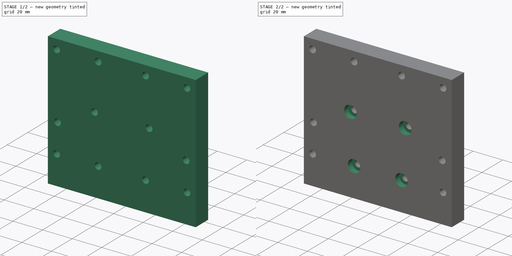
[diagram: build sequence overview — one tinted view per stage of 2, left to right]
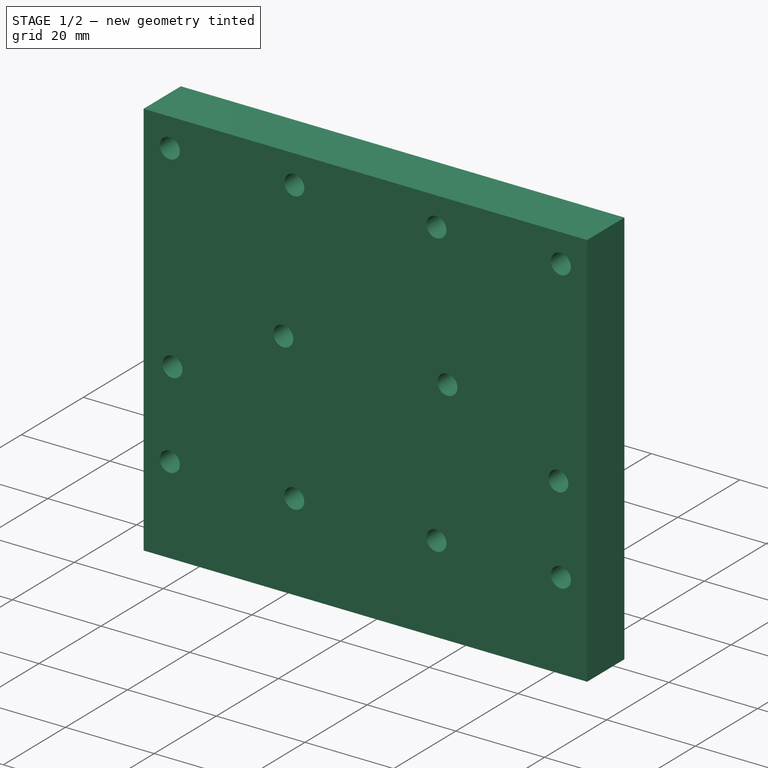
[diagram: stage 1 of 2 — iso view after this stage's code; geometry added in this stage tinted green]
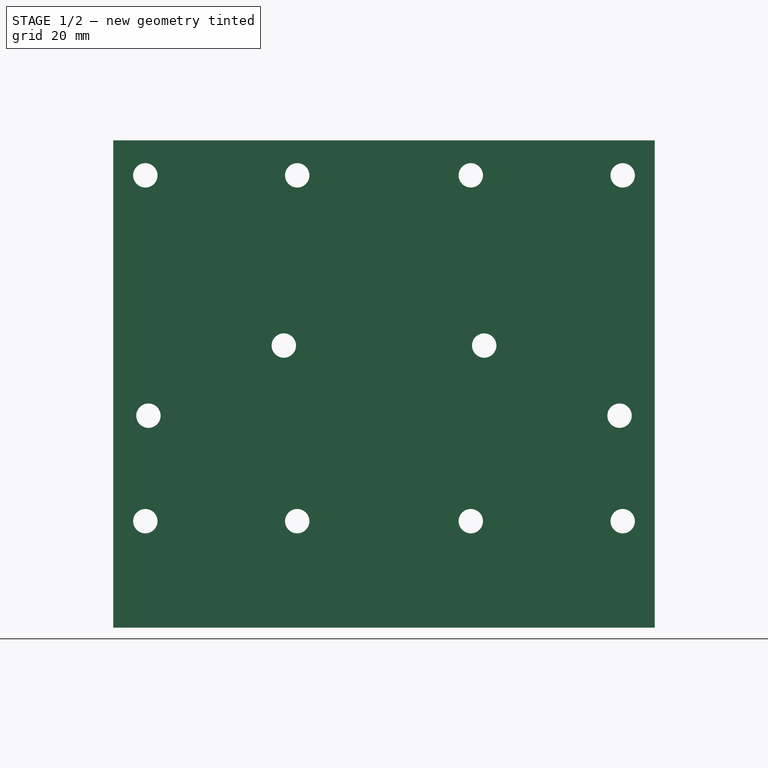
[diagram: stage 1 of 2 — front view after this stage's code; geometry added in this stage tinted green]
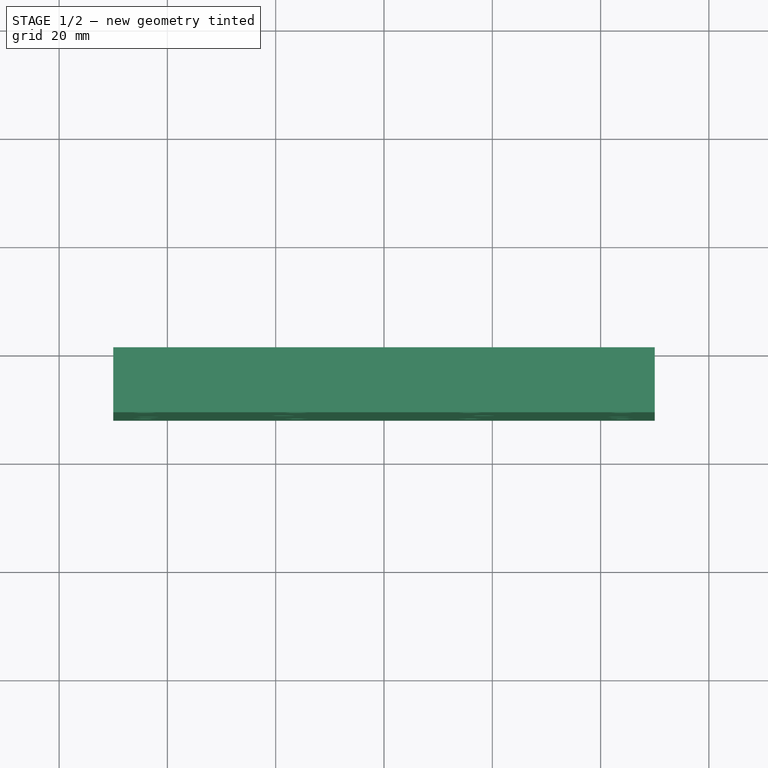
[diagram: stage 1 of 2 — top view after this stage's code; geometry added in this stage tinted green]
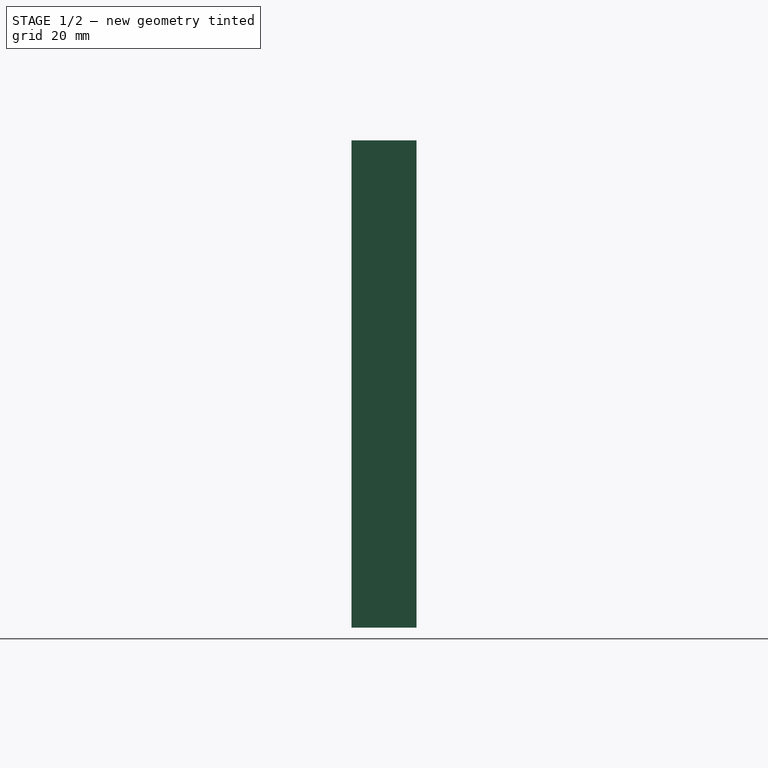
[diagram: stage 1 of 2 — right view after this stage's code; geometry added in this stage tinted green]
FCSTD DOCUMENT  (FreeCAD 0.15R4671 (Git))
Label: Tisch Z-Achse
License: All rights reserved
LicenseURL: http://de.wikipedia.org/wiki/Alle_Rechte_vorbehalten
objects: Drawing::FeatureView×19, Sketcher::SketchObject×3, PartDesign::Pocket×2, Drawing::FeatureViewPart×2, PartDesign::Pad×1, Drawing::FeaturePage×1
note: 9 computed .brp shape members not serialized (recipe doc carries the construction recipe); baked Part::Feature solids carry a one-line shape summary decoded from their .brp

FEATURE [Sketcher::SketchObject] Sketch
  Placement = pos=(0,0,0) rot=(1,0,0;1.5708rad)
  sketch-geometry (4):
    g0: LineSegment StartX=-50 StartY=45 StartZ=0 EndX=50 EndY=45 EndZ=0
    g1: LineSegment StartX=50 StartY=45 StartZ=0 EndX=50 EndY=-45 EndZ=0
    g2: LineSegment StartX=50 StartY=-45 StartZ=0 EndX=-50 EndY=-45 EndZ=0
    g3: LineSegment StartX=-50 StartY=-45 StartZ=0 EndX=-50 EndY=45 EndZ=0
  constraints (12):
    c: Coincident(g0,g1)
    c: Coincident(g1,g2)
    c: Coincident(g2,g3)
    c: Coincident(g3,g0)
    c: Horizontal(g0)
    c: Horizontal(g2)
    c: Vertical(g1)
    c: Vertical(g3)
    c: DistanceX(g2) = -100
    c: DistanceY(g1) = -90
    c: Symmetric(g0,g2,g-1)
    c: Symmetric(g0,g0,g-2)
FEATURE [PartDesign::Pad] Pad
  Length = 12
  Length2 = 100
  Placement = pos=(0,0,0) rot=(1,0,0;1.5708rad)
  Sketch = -> Sketch
  Type = 0
FEATURE [Sketcher::SketchObject] Sketch001
  ExternalGeometry = -> [Pad]
  Placement = pos=(0,-12,0) rot=(1,0,0;1.5708rad)
  Support = -> Pad [Face6]
  sketch-geometry (26):
    g0: LineSegment [constr] StartX=-50 StartY=-25.33 StartZ=0 EndX=-44.075 EndY=-25.33 EndZ=0
    g1: LineSegment [constr] StartX=-44.075 StartY=-25.33 StartZ=0 EndX=-16.025 EndY=-25.33 EndZ=0
    g2: LineSegment [constr] StartX=-16.025 StartY=-25.33 StartZ=0 EndX=16.025 EndY=-25.33 EndZ=0
    g3: LineSegment [constr] StartX=16.025 StartY=-25.33 StartZ=0 EndX=44.075 EndY=-25.33 EndZ=0
    g4: LineSegment [constr] StartX=44.075 StartY=-25.33 StartZ=0 EndX=50 EndY=-25.33 EndZ=0
    g5: LineSegment [constr] StartX=-50 StartY=38.53 StartZ=0 EndX=-44.075 EndY=38.53 EndZ=0
    g6: LineSegment [constr] StartX=-44.075 StartY=38.53 StartZ=0 EndX=-16.025 EndY=38.53 EndZ=0
    g7: LineSegment [constr] StartX=-16.025 StartY=38.53 StartZ=0 EndX=16.025 EndY=38.53 EndZ=0
    g8: LineSegment [constr] StartX=16.025 StartY=38.53 StartZ=0 EndX=44.075 EndY=38.53 EndZ=0
    g9: LineSegment [constr] StartX=44.075 StartY=38.53 StartZ=0 EndX=50 EndY=38.53 EndZ=0
    g10: LineSegment [constr] StartX=-50 StartY=-5.85 StartZ=0 EndX=-43.5 EndY=-5.85 EndZ=0
    g11: LineSegment [constr] StartX=-43.5 StartY=-5.85 StartZ=0 EndX=43.5 EndY=-5.85 EndZ=0
    g12: LineSegment [constr] StartX=43.5 StartY=-5.85 StartZ=0 EndX=50 EndY=-5.85 EndZ=0
    g13: Circle CenterX=-44.075 CenterY=-25.33 CenterZ=0 NormalX=0 NormalY=0 NormalZ=1 Radius=2.25
    g14: Circle CenterX=-43.5 CenterY=-5.85 CenterZ=0 NormalX=0 NormalY=0 NormalZ=1 Radius=2.25
    g15: Circle CenterX=-16.025 CenterY=-25.33 CenterZ=0 NormalX=0 NormalY=0 NormalZ=1 Radius=2.25
    g16: Circle CenterX=16.025 CenterY=-25.33 CenterZ=0 NormalX=0 NormalY=0 NormalZ=1 Radius=2.25
    g17: Circle CenterX=44.075 CenterY=-25.33 CenterZ=0 NormalX=0 NormalY=0 NormalZ=1 Radius=2.25
    g18: Circle CenterX=43.5 CenterY=-5.85 CenterZ=0 NormalX=0 NormalY=0 NormalZ=1 Radius=2.25
    g19: Circle CenterX=-44.075 CenterY=38.53 CenterZ=0 NormalX=0 NormalY=0 NormalZ=1 Radius=2.25
    g20: Circle CenterX=-16.025 CenterY=38.53 CenterZ=0 NormalX=0 NormalY=0 NormalZ=1 Radius=2.25
    g21: Circle CenterX=16.025 CenterY=38.53 CenterZ=0 NormalX=0 NormalY=0 NormalZ=1 Radius=2.25
    g22: Circle CenterX=44.075 CenterY=38.53 CenterZ=0 NormalX=0 NormalY=0 NormalZ=1 Radius=2.25
    g23: LineSegment [constr] StartX=-18.5 StartY=7.1 StartZ=0 EndX=18.5 EndY=7.1 EndZ=0
    g24: Circle CenterX=-18.5 CenterY=7.1 CenterZ=0 NormalX=0 NormalY=0 NormalZ=1 Radius=2.25
    g25: Circle CenterX=18.5 CenterY=7.1 CenterZ=0 NormalX=0 NormalY=0 NormalZ=1 Radius=2.25
  constraints (70):
    c: PointOnObject(g0,g-3)
    c: Horizontal(g0)
    c: Coincident(g0,g1)
    c: Horizontal(g1)
    c: Coincident(g1,g2)
    c: Horizontal(g2)
    c: Coincident(g2,g3)
    c: Horizontal(g3)
    c: Coincident(g3,g4)
    c: PointOnObject(g4,g-4)
    c: Horizontal(g4)
    c: PointOnObject(g5,g-3)
    c: Horizontal(g5)
    c: Coincident(g5,g6)
    c: Horizontal(g6)
    c: Coincident(g6,g7)
    c: Horizontal(g7)
    c: Coincident(g7,g8)
    c: Horizontal(g8)
    c: Coincident(g8,g9)
    c: PointOnObject(g9,g-4)
    c: Horizontal(g9)
    c: Equal(g4,g0)
    c: Equal(g0,g5)
    c: Equal(g5,g9)
    c: Equal(g6,g8)
    c: Equal(g8,g3)
    c: Equal(g3,g1)
    c: DistanceY(g-3,g0) = 19.67
    c: DistanceY(g-3,g5) = 83.53
    c: DistanceX(g1) = 28.05
    c: DistanceX(g0) = 5.925
    c: PointOnObject(g10,g-3)
    c: Horizontal(g10)
    c: Coincident(g10,g11)
    c: Horizontal(g11)
    c: Coincident(g11,g12)
    c: PointOnObject(g12,g-4)
    c: Horizontal(g12)
    c: Equal(g10,g12)
    c: DistanceX(g10) = 6.5
    c: DistanceY(g-3,g10) = 39.15
    c: Coincident(g13,g0)
    c: Coincident(g14,g10)
    c: Coincident(g15,g1)
    c: Coincident(g16,g2)
    c: Coincident(g17,g3)
    c: Coincident(g18,g11)
    c: Coincident(g19,g5)
    c: Coincident(g20,g6)
    c: Coincident(g7,g21)
    c: Coincident(g22,g8)
    c: Radius(g19) = 2.25
    c: Equal(g19,g20)
    c: Equal(g19,g21)
    c: Equal(g19,g22)
    c: Equal(g19,g18)
    c: Equal(g19,g14)
    c: Equal(g19,g13)
    c: Equal(g19,g15)
    c: Equal(g19,g16)
    c: Equal(g19,g17)
    c: Horizontal(g23)
    c: Symmetric(g23,g23,g-2)
    c: DistanceX(g23) = 37
    c: DistanceY(g-3,g23) = 52.1
    c: Coincident(g24,g23)
    c: Coincident(g25,g23)
    c: Equal(g24,g25)
    c: Equal(g25,g21)
FEATURE [PartDesign::Pocket] Pocket
  Length = 5
  Placement = pos=(0,0,0) rot=(1,0,0;1.5708rad)
  Sketch = -> Sketch001
  Type = 1
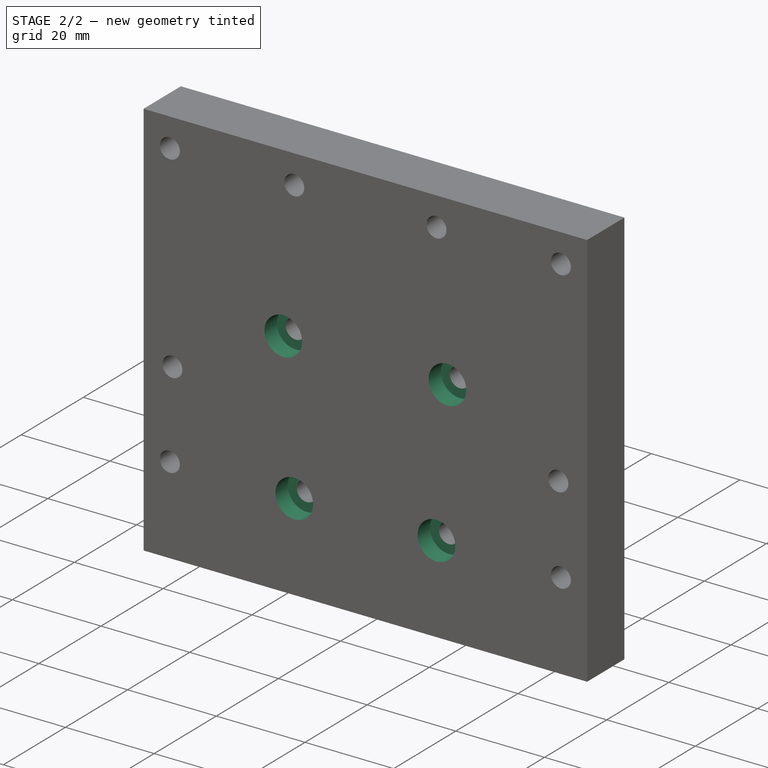
[diagram: stage 2 of 2 — iso view after this stage's code; geometry added in this stage tinted green]
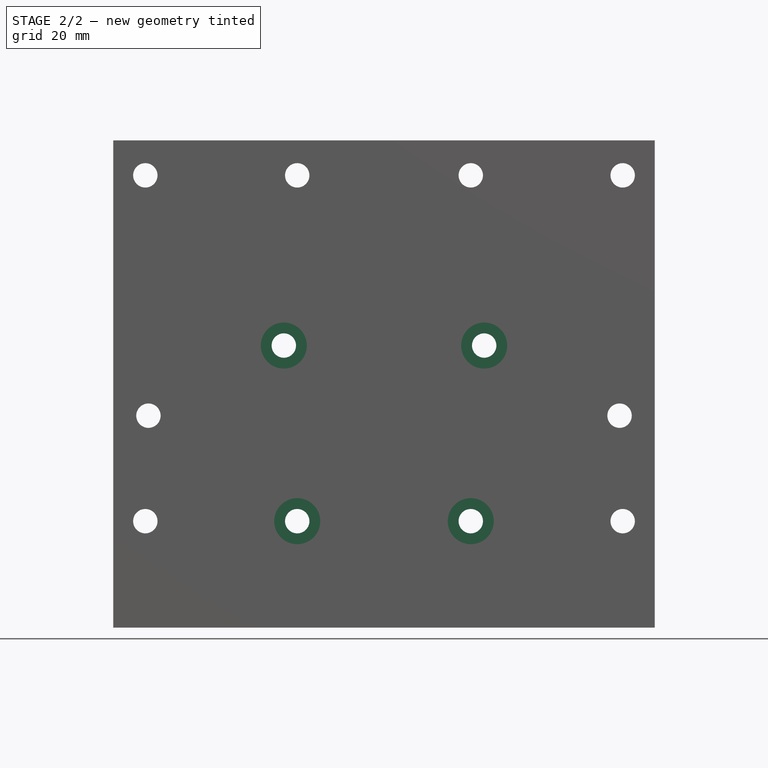
[diagram: stage 2 of 2 — front view after this stage's code; geometry added in this stage tinted green]
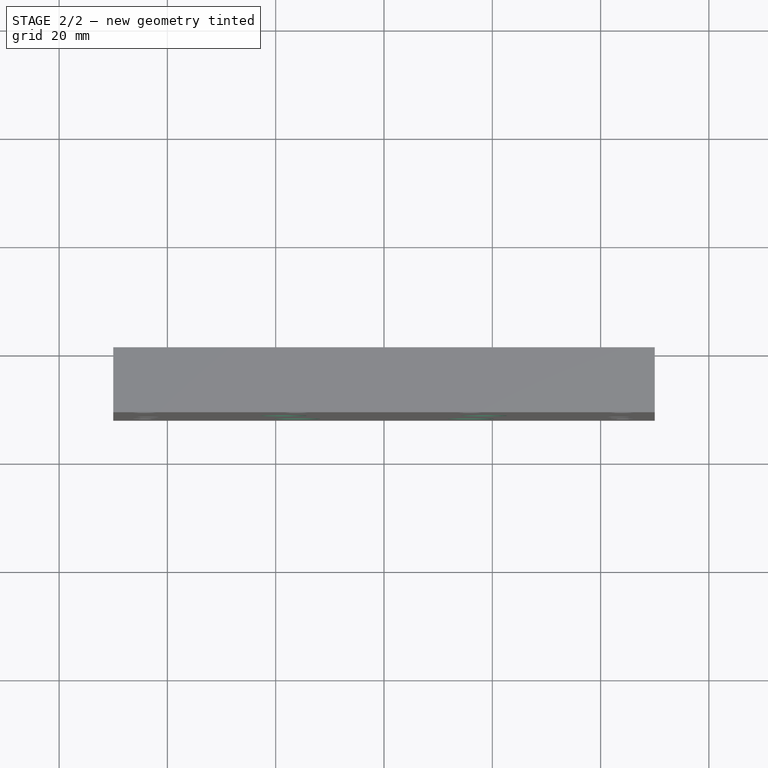
[diagram: stage 2 of 2 — top view after this stage's code; geometry added in this stage tinted green]
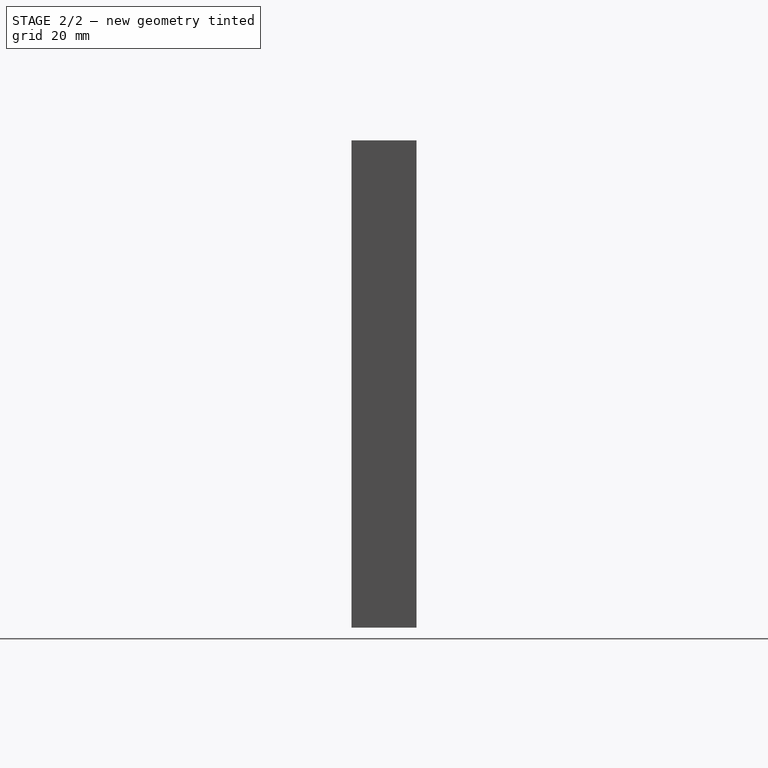
[diagram: stage 2 of 2 — right view after this stage's code; geometry added in this stage tinted green]
FEATURE [Sketcher::SketchObject] Sketch002
  ExternalGeometry = -> [Pocket]
  Placement = pos=(0,-12,0) rot=(1,0,0;1.5708rad)
  Support = -> Pocket [Face5]
  sketch-geometry (4):
    g0: Circle CenterX=-16.025 CenterY=-25.33 CenterZ=0 NormalX=0 NormalY=0 NormalZ=1 Radius=4.25
    g1: Circle CenterX=16.025 CenterY=-25.33 CenterZ=0 NormalX=0 NormalY=0 NormalZ=1 Radius=4.25
    g2: Circle CenterX=-18.5 CenterY=7.1 CenterZ=0 NormalX=0 NormalY=0 NormalZ=1 Radius=4.25
    g3: Circle CenterX=18.5 CenterY=7.1 CenterZ=0 NormalX=0 NormalY=0 NormalZ=1 Radius=4.25
  constraints (8):
    c: Radius(g0) = 4.25
    c: Equal(g0,g1)
    c: Equal(g0,g2)
    c: Equal(g2,g3)
    c: Coincident(g0,g-5)
    c: Coincident(g3,g-3)
    c: Coincident(g2,g-4)
    c: Coincident(g1,g-6)
FEATURE [PartDesign::Pocket] Pocket001
  Length = 4
  Placement = pos=(0,0,0) rot=(1,0,0;1.5708rad)
  Sketch = -> Sketch002
  Type = 0
FEATURE [Drawing::FeatureViewPart] Ortho  label="Ortho_0_0"
  Direction = (0,1,0)
  HiddenWidth = 0.15
  LineWidth = 0.35
  Rotation = 90
  ShowHiddenLines = false
  ShowSmoothLines = false
  Source = -> Pocket001
  Tolerance = 0.05
  ViewResult = <g id="Ortho_0_0"\n   transform="rotate(90,148.5,54.25) translate(148.5,54.25) scale(1,1)"\n  >\n<g   stroke="rgb(0, 0, 0)"\n   stroke-width="0.35"\n   stroke-linecap="butt"\n   stroke-linejoin="miter"\n   fill="none"\n   transform="scale(1,-1)"\n  >\n<path id= "1" d=" M 45 -50 L 45 50 " />\n<path id= "2" d=" M -45 -50 L 45 -50 " />\n<path id= "3" d=" M 45 50 L -45 50 " />\n<path id= "4" d=" M -45 50 L -45 -50 " />\n<circle cx ="-25.33" cy ="44.075" r ="2.25" /><circle cx ="-5.85" cy ="43.5" r ="2.25" /><circle cx ="-25.33" cy ="16.025" r ="2.25" /><circle cx ="38.53" cy ="16.025" r ="2.25" /><circle cx ="38.53" cy ="44.075" r ="2.25" /><circle cx ="7.1" cy ="18.5" r ="2.25" /><circle cx ="38.53" cy ="-44.075" r ="2.25" /><circle cx ="38.53" cy ="-16.025" r ="2.25" /><circle cx ="7.1" cy ="-18.5" r ="2.25" /><circle cx ="-25.33" cy ="-16.025" r ="2.25" /><circle cx ="-25.33" cy ="-44.075" r ="2.25" /><circle cx ="-5.85" cy ="-43.5" r ="2.25" /></g>\n</g>
  Visible = true
  X = 148.5
  Y = 54.25
FEATURE [Drawing::FeatureViewPart] Ortho001  label="Ortho_0_-2"
  Direction = (0,-1,0)
  HiddenWidth = 0.15
  LineWidth = 0.35
  Rotation = 90
  ShowHiddenLines = false
  ShowSmoothLines = false
  Source = -> Pocket001
  Tolerance = 0.05
  ViewResult = <g id="Ortho_0_-2"\n   transform="rotate(90,148.5,154.25) translate(148.5,154.25) scale(1,1)"\n  >\n<g   stroke="rgb(0, 0, 0)"\n   stroke-width="0.35"\n   stroke-linecap="butt"\n   stroke-linejoin="miter"\n   fill="none"\n   transform="scale(1,-1)"\n  >\n<path id= "1" d=" M -45 -50 L -45 50 " />\n<path id= "2" d=" M 45 -50 L -45 -50 " />\n<path id= "3" d=" M -45 50 L 45 50 " />\n<path id= "4" d=" M 45 50 L 45 -50 " />\n<circle cx ="25.33" cy ="-44.075" r ="2.25" /><circle cx ="25.33" cy ="-16.025" r ="4.25" /><circle cx ="5.85" cy ="-43.5" r ="2.25" /><circle cx ="-7.1" cy ="18.5" r ="4.25" /><circle cx ="-7.1" cy ="-18.5" r ="4.25" /><circle cx ="25.33" cy ="16.025" r ="4.25" /><circle cx ="25.33" cy ="44.075" r ="2.25" /><circle cx ="5.85" cy ="43.5" r ="2.25" /><circle cx ="-38.53" cy ="-44.075" r ="2.25" /><circle cx ="-38.53" cy ="-16.025" r ="2.25" /><circle cx ="-38.53" cy ="44.075" r ="2.25" /><circle cx ="-38.53" cy ="16.025" r ="2.25" /><circle cx ="25.33" cy ="16.025" r ="2.25" /><circle cx ="-7.1" cy ="18.5" r ="2.25" /><circle cx ="-7.1" cy ="-18.5" r ="2.25" /><circle cx ="25.33" cy ="-16.025" r ="2.25" /></g>\n</g>
  Visible = true
  X = 148.5
  Y = 154.25
FEATURE [Drawing::FeatureView] dim001
  Rotation = 0
  ViewResult = <g>  <circle cx ="104.425000" cy ="28.920000" r="0.250000" stroke="none" fill="rgb(0,0,255)" /> \n<line x1="114.423928" y1="22.633304" x2="106.329790" y2="30.117612" style="stroke:rgb(0,0,255);stroke-width:0.50" />\n<polygon points="102.520210,27.722388 100.512762,25.278999 99.133916,25.593300 99.448218,26.972145" style="fill:rgb(0,0,255);stroke:rgb(0,0,255);stroke-width:0" />\n<polygon points="106.329790,30.117612 108.337238,32.561001 109.716084,32.246700 109.401782,30.867855" style="fill:rgb(0,0,255);stroke:rgb(0,0,255);stroke-width:0" />\n<line x1="114.423928" y1="22.633304" x2="117.881794" y2="22.633304" style="stroke:rgb(0,0,255);stroke-width:0.50" />\n<text x="116.152861" y="20.633304" font-family="inherit" font-size="3.6" fill="rgb(0,0,255)" text-anchor="middle" transform="rotate(0.000000 116.152861,20.633304)" >Ø4.5</text> </g>
  Visible = true
  X = 0
  Y = 0
FEATURE [Drawing::FeatureView] dim002
  Rotation = 0
  ViewResult = <g>  <circle cx ="130.000000" cy ="147.150000" r="0.250000" stroke="none" fill="rgb(0,0,255)" /> \n<line x1="137.371584" y1="151.203047" x2="126.275800" y2="145.102359" style="stroke:rgb(0,0,255);stroke-width:0.50" />\n<polygon points="133.724200,149.197641 135.871249,151.519317 137.229329,151.124833 136.834845,149.766753" style="fill:rgb(0,0,255);stroke:rgb(0,0,255);stroke-width:0" />\n<polygon points="126.275800,145.102359 124.128751,142.780683 122.770671,143.175167 123.165155,144.533247" style="fill:rgb(0,0,255);stroke:rgb(0,0,255);stroke-width:0" />\n<line x1="137.371584" y1="151.203047" x2="146.487776" y2="151.203047" style="stroke:rgb(0,0,255);stroke-width:0.50" />\n<text x="141.929680" y="149.203047" font-family="inherit" font-size="3.6" fill="rgb(0,0,255)" text-anchor="middle" transform="rotate(0.000000 141.929680,149.203047)" >Ø8.5</text> </g>
  Visible = true
  X = 0
  Y = 0
FEATURE [Drawing::FeatureView] centerLines001
  Rotation = 0
  ViewResult = <g transform="scale(1.000000,1.000000)" stroke="rgb(0,0,255)"  stroke-width="0.320000" > <path d="M 104.425000,28.920000 L 104.425000,25.920000 M 104.425000,23.920000 L 104.425000,22.318953 "/>\n<path d="M 104.425000,28.920000 L 107.425000,28.920000 M 109.425000,28.920000 L 110.651710,28.920000 "/>\n<path d="M 104.425000,28.920000 L 104.425000,31.920000 "/>\n<path d="M 104.425000,28.920000 L 101.425000,28.920000 M 99.425000,28.920000 L 99.020707,28.920000 "/> </g> 
  Visible = true
  X = 0
  Y = 0
FEATURE [Drawing::FeatureView] centerLines002
  Rotation = 0
  ViewResult = <g transform="scale(1.000000,1.000000)" stroke="rgb(0,0,255)"  stroke-width="0.320000" > <path d="M 105.000000,48.400000 L 105.000000,45.400000 "/>\n<path d="M 105.000000,48.400000 L 108.000000,48.400000 M 110.000000,48.400000 L 113.480873,48.400000 "/>\n<path d="M 105.000000,48.400000 L 105.000000,51.400000 "/>\n<path d="M 105.000000,48.400000 L 102.000000,48.400000 M 100.000000,48.400000 L 98.077652,48.400000 "/> </g> 
  Visible = true
  X = 0
  Y = 0
FEATURE [Drawing::FeatureView] centerLines003
  Rotation = 0
  ViewResult = <g transform="scale(1.000000,1.000000)" stroke="rgb(0,0,255)"  stroke-width="0.320000" > <path d="M 104.425000,92.780000 L 104.425000,89.780000 M 104.425000,87.780000 L 104.425000,86.761000 "/>\n<path d="M 104.425000,92.780000 L 107.425000,92.780000 M 109.425000,92.780000 L 111.909116,92.780000 "/>\n<path d="M 104.425000,92.780000 L 104.425000,95.780000 M 104.425000,97.780000 L 104.425000,99.020707 "/>\n<path d="M 104.425000,92.780000 L 101.425000,92.780000 M 99.425000,92.780000 L 98.077652,92.780000 "/> </g> 
  Visible = true
  X = 0
  Y = 0
FEATURE [Drawing::FeatureView] centerLines004
  Rotation = 0
  ViewResult = <g transform="scale(1.000000,1.000000)" stroke="rgb(0,0,255)"  stroke-width="0.320000" > <path d="M 132.475000,92.780000 L 132.475000,89.780000 M 132.475000,87.780000 L 132.475000,87.075352 "/>\n<path d="M 132.475000,92.780000 L 135.475000,92.780000 "/>\n<path d="M 132.475000,92.780000 L 132.475000,95.780000 "/>\n<path d="M 132.475000,92.780000 L 129.475000,92.780000 M 127.475000,92.780000 L 126.683634,92.780000 "/> </g> 
  Visible = true
  X = 0
  Y = 0
FEATURE [Drawing::FeatureView] centerLines005
  Rotation = 0
  ViewResult = <g transform="scale(1.000000,1.000000)" stroke="rgb(0,0,255)"  stroke-width="0.320000" > <path d="M 130.000000,61.350000 L 130.000000,58.350000 M 130.000000,56.350000 L 130.000000,55.954558 "/>\n<path d="M 130.000000,61.350000 L 133.000000,61.350000 M 135.000000,61.350000 L 135.485475,61.350000 "/>\n<path d="M 130.000000,61.350000 L 130.000000,64.350000 M 130.000000,66.350000 L 130.000000,67.271210 "/>\n<path d="M 130.000000,61.350000 L 127.000000,61.350000 M 125.000000,61.350000 L 124.168823,61.350000 "/> </g> 
  Visible = true
  X = 0
  Y = 0
FEATURE [Drawing::FeatureView] centerLines006
  Rotation = 0
  ViewResult = <g transform="scale(1.000000,1.000000)" stroke="rgb(0,0,255)"  stroke-width="0.320000" > <path d="M 132.475000,28.920000 L 132.475000,25.920000 M 132.475000,23.920000 L 132.475000,23.262007 "/>\n<path d="M 132.475000,28.920000 L 135.475000,28.920000 "/>\n<path d="M 132.475000,28.920000 L 132.475000,31.920000 M 132.475000,33.920000 L 132.475000,34.893011 "/>\n<path d="M 132.475000,28.920000 L 129.475000,28.920000 "/> </g> 
  Visible = true
  X = 0
  Y = 0
FEATURE [Drawing::FeatureView] centerLines007
  Rotation = 0
  ViewResult = <g transform="scale(1.000000,1.000000)" stroke="rgb(0,0,255)"  stroke-width="0.320000" > <path d="M 164.525000,28.920000 L 164.525000,25.920000 "/>\n<path d="M 164.525000,28.920000 L 167.525000,28.920000 M 169.525000,28.920000 L 169.749783,28.920000 "/>\n<path d="M 164.525000,28.920000 L 164.525000,31.920000 M 164.525000,33.920000 L 164.525000,37.407823 "/>\n<path d="M 164.525000,28.920000 L 161.525000,28.920000 M 159.525000,28.920000 L 156.861374,28.920000 "/> </g> 
  Visible = true
  X = 0
  Y = 0
FEATURE [Drawing::FeatureView] centerLines008
  Rotation = 0
  ViewResult = <g transform="scale(1.000000,1.000000)" stroke="rgb(0,0,255)"  stroke-width="0.320000" > <path d="M 167.000000,61.350000 L 167.000000,58.350000 "/>\n<path d="M 167.000000,61.350000 L 170.000000,61.350000 "/>\n<path d="M 167.000000,61.350000 L 167.000000,64.350000 M 167.000000,66.350000 L 167.000000,69.471670 "/>\n<path d="M 167.000000,61.350000 L 164.000000,61.350000 M 162.000000,61.350000 L 159.690537,61.350000 "/> </g> 
  Visible = true
  X = 0
  Y = 0
FEATURE [Drawing::FeatureView] centerLines009
  Rotation = 0
  ViewResult = <g transform="scale(1.000000,1.000000)" stroke="rgb(0,0,255)"  stroke-width="0.320000" > <path d="M 164.525000,92.780000 L 164.525000,89.780000 M 164.525000,87.780000 L 164.525000,87.704055 "/>\n<path d="M 164.525000,92.780000 L 167.525000,92.780000 M 169.525000,92.780000 L 171.635892,92.780000 "/>\n<path d="M 164.525000,92.780000 L 164.525000,95.780000 M 164.525000,97.780000 L 164.525000,99.963761 "/>\n<path d="M 164.525000,92.780000 L 161.525000,92.780000 M 159.525000,92.780000 L 159.061834,92.780000 "/> </g> 
  Visible = true
  X = 0
  Y = 0
FEATURE [Drawing::FeatureView] centerLines010
  Rotation = 0
  ViewResult = <g transform="scale(1.000000,1.000000)" stroke="rgb(0,0,255)"  stroke-width="0.320000" > <path d="M 192.575000,92.780000 L 192.575000,89.780000 M 192.575000,87.780000 L 192.575000,86.761000 "/>\n<path d="M 192.575000,92.780000 L 195.575000,92.780000 "/>\n<path d="M 192.575000,92.780000 L 192.575000,95.780000 "/>\n<path d="M 192.575000,92.780000 L 189.575000,92.780000 "/> </g> 
  Visible = true
  X = 0
  Y = 0
FEATURE [Drawing::FeatureView] centerLines011
  Rotation = 0
  ViewResult = <g transform="scale(1.000000,1.000000)" stroke="rgb(0,0,255)"  stroke-width="0.320000" > <path d="M 192.000000,48.400000 L 192.000000,45.400000 M 192.000000,43.400000 L 192.000000,42.751797 "/>\n<path d="M 192.000000,48.400000 L 195.000000,48.400000 M 197.000000,48.400000 L 198.984468,48.400000 "/>\n<path d="M 192.000000,48.400000 L 192.000000,51.400000 M 192.000000,53.400000 L 192.000000,55.954558 "/>\n<path d="M 192.000000,48.400000 L 189.000000,48.400000 M 187.000000,48.400000 L 186.724761,48.400000 "/> </g> 
  Visible = true
  X = 0
  Y = 0
FEATURE [Drawing::FeatureView] centerLines012
  Rotation = 0
  ViewResult = <g transform="scale(1.000000,1.000000)" stroke="rgb(0,0,255)"  stroke-width="0.320000" > <path d="M 192.575000,28.920000 L 192.575000,25.920000 "/>\n<path d="M 192.575000,28.920000 L 195.575000,28.920000 "/>\n<path d="M 192.575000,28.920000 L 192.575000,31.920000 M 192.575000,33.920000 L 192.575000,34.893011 "/>\n<path d="M 192.575000,28.920000 L 189.575000,28.920000 M 187.575000,28.920000 L 185.781707,28.920000 "/> </g> 
  Visible = true
  X = 0
  Y = 0
FEATURE [Drawing::FeatureView] centerLines013
  Rotation = 0
  ViewResult = <g transform="scale(1.000000,1.000000)" stroke="rgb(0,0,255)"  stroke-width="0.320000" > <path d="M 167.000000,147.150000 L 167.000000,144.150000 M 167.000000,142.150000 L 167.000000,139.572044 "/>\n<path d="M 167.000000,147.150000 L 170.000000,147.150000 M 172.000000,147.150000 L 176.351163,147.150000 "/>\n<path d="M 167.000000,147.150000 L 167.000000,150.150000 M 167.000000,152.150000 L 167.000000,154.346562 "/>\n<path d="M 167.000000,147.150000 L 164.000000,147.150000 M 162.000000,147.150000 L 160.633591,147.150000 "/> </g> 
  Visible = true
  X = 0
  Y = 0
FEATURE [Drawing::FeatureView] centerLines014
  Rotation = 0
  ViewResult = <g transform="scale(1.000000,1.000000)" stroke="rgb(0,0,255)"  stroke-width="0.320000" > <path d="M 130.000000,147.150000 L 130.000000,144.150000 M 130.000000,142.150000 L 130.000000,138.000287 "/>\n<path d="M 130.000000,147.150000 L 133.000000,147.150000 M 135.000000,147.150000 L 138.314638,147.150000 "/>\n<path d="M 130.000000,147.150000 L 130.000000,150.150000 M 130.000000,152.150000 L 130.000000,155.603968 "/>\n<path d="M 130.000000,147.150000 L 127.000000,147.150000 M 125.000000,147.150000 L 123.854471,147.150000 "/> </g> 
  Visible = true
  X = 0
  Y = 0
FEATURE [Drawing::FeatureView] centerLines015
  Rotation = 0
  ViewResult = <g transform="scale(1.000000,1.000000)" stroke="rgb(0,0,255)"  stroke-width="0.320000" > <path d="M 132.475000,179.580000 L 132.475000,176.580000 M 132.475000,174.580000 L 132.475000,171.321540 "/>\n<path d="M 132.475000,179.580000 L 135.475000,179.580000 M 137.475000,179.580000 L 140.515098,179.580000 "/>\n<path d="M 132.475000,179.580000 L 132.475000,182.580000 M 132.475000,184.580000 L 132.475000,186.410410 "/>\n<path d="M 132.475000,179.580000 L 129.475000,179.580000 M 127.475000,179.580000 L 126.683634,179.580000 "/> </g> 
  Visible = true
  X = 0
  Y = 0
FEATURE [Drawing::FeatureView] centerLines016
  Rotation = 0
  ViewResult = <g transform="scale(1.000000,1.000000)" stroke="rgb(0,0,255)"  stroke-width="0.320000" > <path d="M 164.525000,179.580000 L 164.525000,176.580000 M 164.525000,174.580000 L 164.525000,170.692837 "/>\n<path d="M 164.525000,179.580000 L 167.525000,179.580000 M 169.525000,179.580000 L 175.525000,179.580000 "/>\n<path d="M 164.525000,179.580000 L 164.525000,182.580000 M 164.525000,184.580000 L 164.525000,187.667816 "/>\n<path d="M 164.525000,179.580000 L 161.525000,179.580000 M 159.525000,179.580000 L 158.433131,179.580000 "/> </g> 
  Visible = true
  X = 0
  Y = 0
FEATURE [Drawing::FeatureView] dimText001
  Rotation = 0
  ViewResult = <g> <text x="133.913718" y="162.519700" font-family="inherit" font-size="5" fill="rgb(0,0,0)" text-anchor="inherit" transform="rotate(0.000000 133.913718,162.519700)" >Tiefe 4mm</text> </g>
  Visible = true
  X = 0
  Y = 0
FEATURE [Drawing::FeaturePage] Page
  Group = -> [Ortho,Ortho001,dim001,dim002,centerLines001,centerLines002,centerLines003,centerLines004,centerLines005,centerLines006,centerLines007,centerLines008,centerLines009,centerLines010,centerLines011,centerLines012,centerLines013,centerLines014,centerLines015,centerLines016,dimText001]
  Template = C:/Program Files/FreeCAD 0.15/data/Mod/Drawing/Templates/A4_Landscape_plain.svg
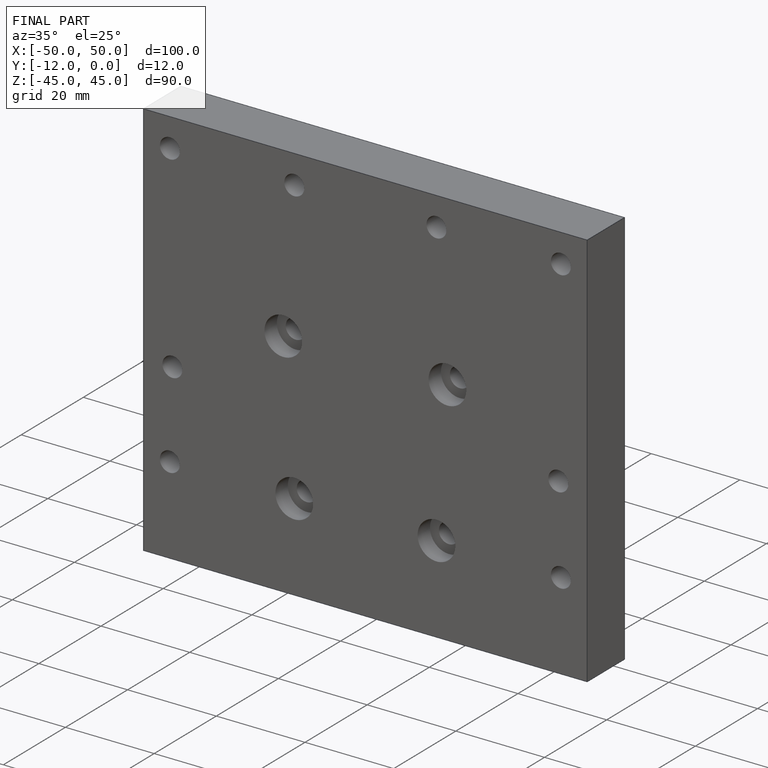
[diagram: finished part — iso view with bounding-box wireframe]
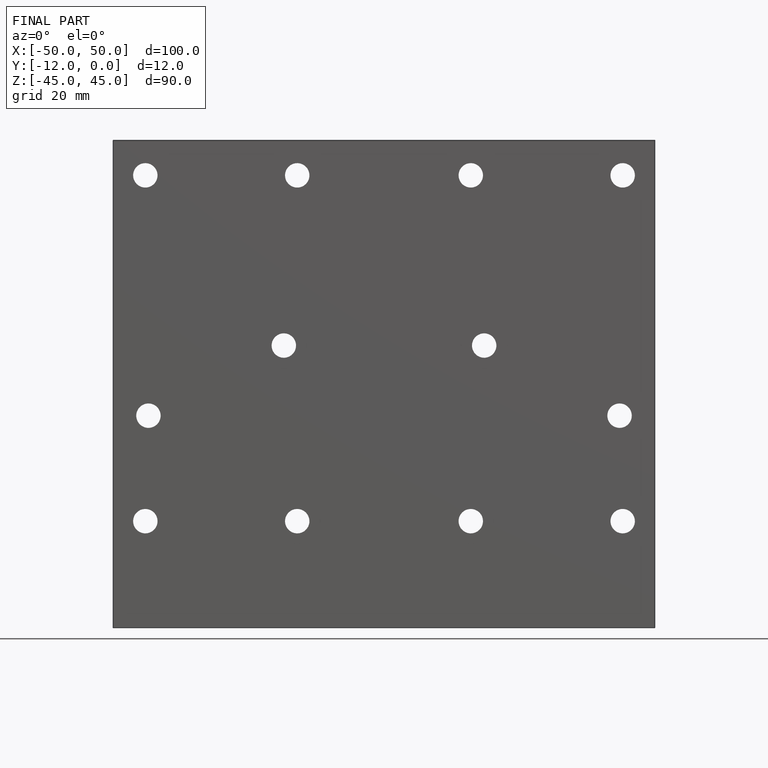
[diagram: finished part — front view with bounding-box wireframe]
